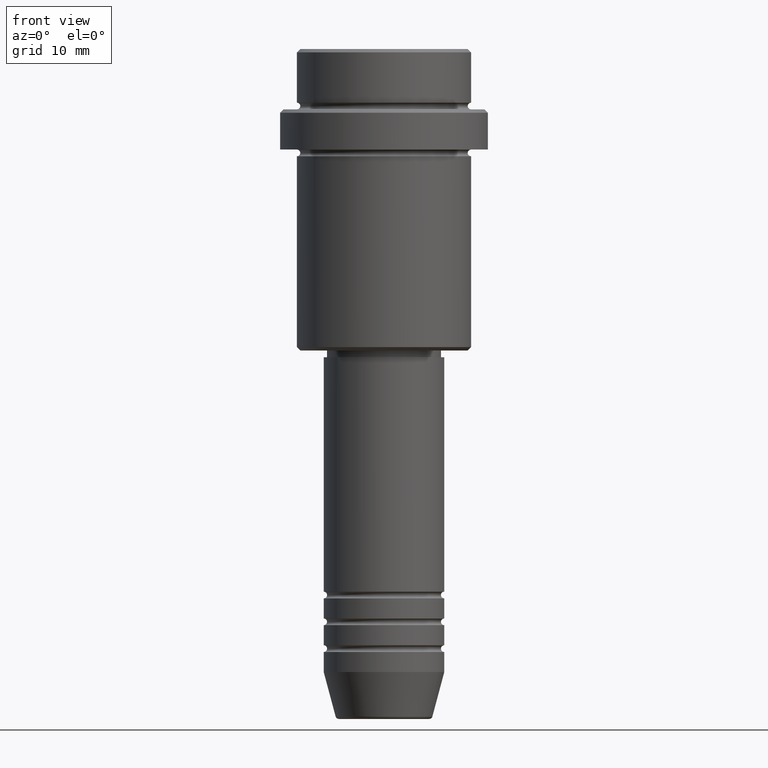
[diagram: clean part render]
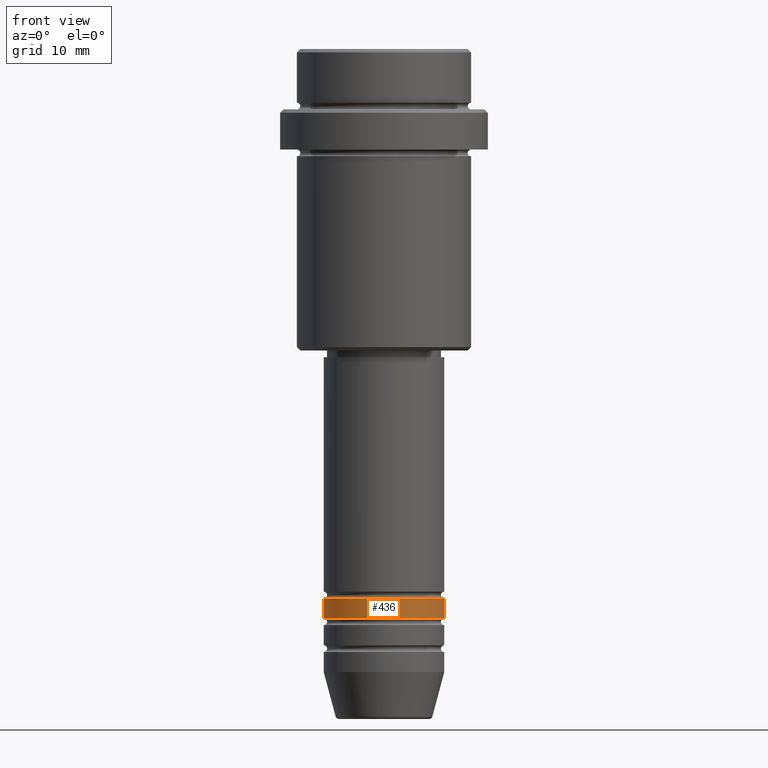
[diagram: same view with one face highlighted and labeled with its STEP entity id]
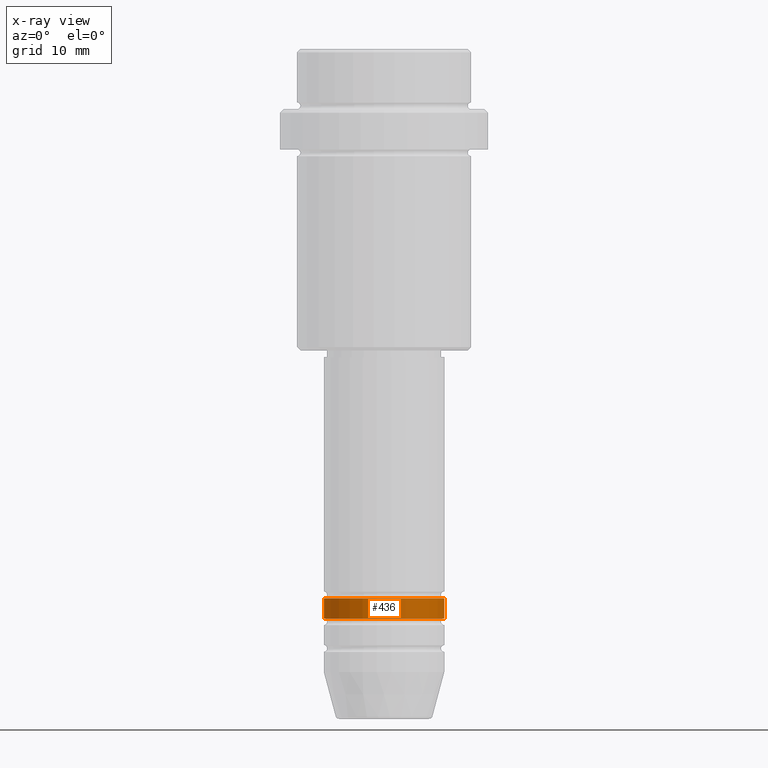
[diagram: x-ray of the same camera — body ghosted, the highlighted face saturated]
A machine part, front view. The second image highlights one B-rep face of the part: STEP entity #436.
The next image is the same camera in x-ray: the body ghosted, the highlighted face saturated — about 0% of this face is hidden behind the body in this view.
In plain terms, the highlighted cylindrical surface (partial cylindrical patch) has radius 9 mm, axis along (-0, -0, 1).
Its self-contained STEP definition (entity closure, byte-faithful):
#17 = AXIS2_PLACEMENT_3D ( 'NONE', #1358, #390, #1126 ) ;
#38 = VERTEX_POINT ( 'NONE', #979 ) ;
#71 = DIRECTION ( 'NONE',  ( -0.000000000000000000, -0.000000000000000000, 1.000000000000000000 ) ) ;
#93 = FACE_OUTER_BOUND ( 'NONE', #916, .T. ) ;
#155 = CARTESIAN_POINT ( 'NONE',  ( -9.000000000000000000, 1.102182119232617714E-15, 0.000000000000000000 ) ) ;
#179 = CARTESIAN_POINT ( 'NONE',  ( 0.000000000000000000, 0.000000000000000000, 0.000000000000000000 ) ) ;
#197 = VERTEX_POINT ( 'NONE', #1087 ) ;
#202 = DIRECTION ( 'NONE',  ( 1.000000000000000000, 0.000000000000000000, 0.000000000000000000 ) ) ;
#214 = DIRECTION ( 'NONE',  ( 1.000000000000000000, 0.000000000000000000, 0.000000000000000000 ) ) ;
#222 = CARTESIAN_POINT ( 'NONE',  ( 9.000000000000000000, 0.000000000000000000, 0.000000000000000000 ) ) ;
#259 = ORIENTED_EDGE ( 'NONE', *, *, #594, .T. ) ;
#390 = DIRECTION ( 'NONE',  ( -0.000000000000000000, -0.000000000000000000, 1.000000000000000000 ) ) ;
#436 = ADVANCED_FACE ( 'NONE', ( #93 ), #731, .T. ) ;
#490 = ORIENTED_EDGE ( 'NONE', *, *, #591, .F. ) ;
#519 = EDGE_CURVE ( 'NONE', #197, #1289, #691, .T. ) ;
#554 = EDGE_CURVE ( 'NONE', #38, #1289, #978, .T. ) ;
#567 = LINE ( 'NONE', #155, #1253 ) ;
#591 = EDGE_CURVE ( 'NONE', #1204, #38, #567, .T. ) ;
#594 = EDGE_CURVE ( 'NONE', #1204, #197, #638, .T. ) ;
#638 = CIRCLE ( 'NONE', #17, 9.000000000000000000 ) ;
#645 = CARTESIAN_POINT ( 'NONE',  ( 9.000000000000000000, 0.000000000000000000, -81.99999999999987210 ) ) ;
#691 = LINE ( 'NONE', #222, #795 ) ;
#731 = CYLINDRICAL_SURFACE ( 'NONE', #953, 9.000000000000000000 ) ;
#795 = VECTOR ( 'NONE', #987, 1000.000000000000000 ) ;
#858 = ORIENTED_EDGE ( 'NONE', *, *, #554, .F. ) ;
#916 = EDGE_LOOP ( 'NONE', ( #490, #259, #1027, #858 ) ) ;
#953 = AXIS2_PLACEMENT_3D ( 'NONE', #179, #71, #202 ) ;
#978 = CIRCLE ( 'NONE', #1347, 9.000000000000000000 ) ;
#979 = CARTESIAN_POINT ( 'NONE',  ( -9.000000000000000000, 1.102182119232617714E-15, -81.99999999999987210 ) ) ;
#987 = DIRECTION ( 'NONE',  ( -0.000000000000000000, -0.000000000000000000, 1.000000000000000000 ) ) ;
#1027 = ORIENTED_EDGE ( 'NONE', *, *, #519, .T. ) ;
#1087 = CARTESIAN_POINT ( 'NONE',  ( 9.000000000000000000, 0.000000000000000000, -84.99999999999988631 ) ) ;
#1126 = DIRECTION ( 'NONE',  ( 1.000000000000000000, 0.000000000000000000, 0.000000000000000000 ) ) ;
#1131 = DIRECTION ( 'NONE',  ( -0.000000000000000000, -0.000000000000000000, 1.000000000000000000 ) ) ;
#1200 = CARTESIAN_POINT ( 'NONE',  ( 0.000000000000000000, 0.000000000000000000, -81.99999999999987210 ) ) ;
#1204 = VERTEX_POINT ( 'NONE', #1342 ) ;
#1253 = VECTOR ( 'NONE', #1131, 1000.000000000000000 ) ;
#1289 = VERTEX_POINT ( 'NONE', #645 ) ;
#1342 = CARTESIAN_POINT ( 'NONE',  ( -9.000000000000000000, 1.102182119232617714E-15, -84.99999999999988631 ) ) ;
#1347 = AXIS2_PLACEMENT_3D ( 'NONE', #1200, #1415, #214 ) ;
#1358 = CARTESIAN_POINT ( 'NONE',  ( 0.000000000000000000, 0.000000000000000000, -84.99999999999988631 ) ) ;
#1415 = DIRECTION ( 'NONE',  ( -0.000000000000000000, -0.000000000000000000, 1.000000000000000000 ) ) ;